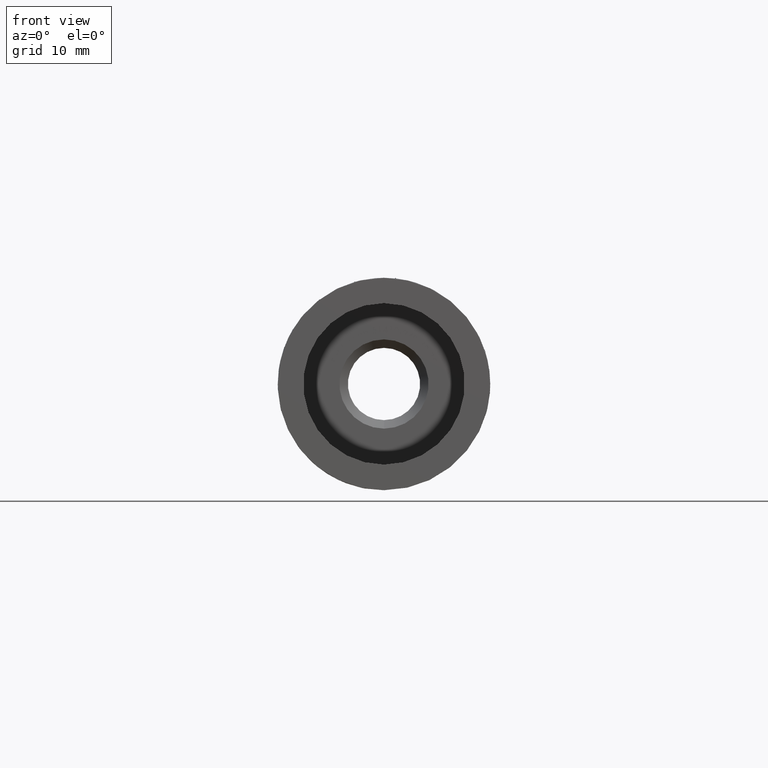
[diagram: clean part render]
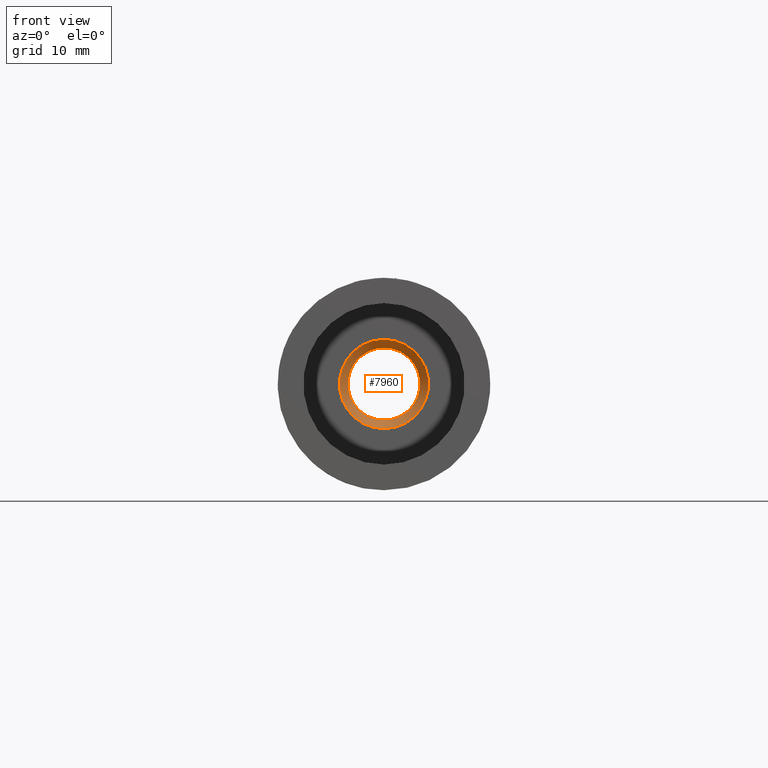
[diagram: same view with one face highlighted and labeled with its STEP entity id]
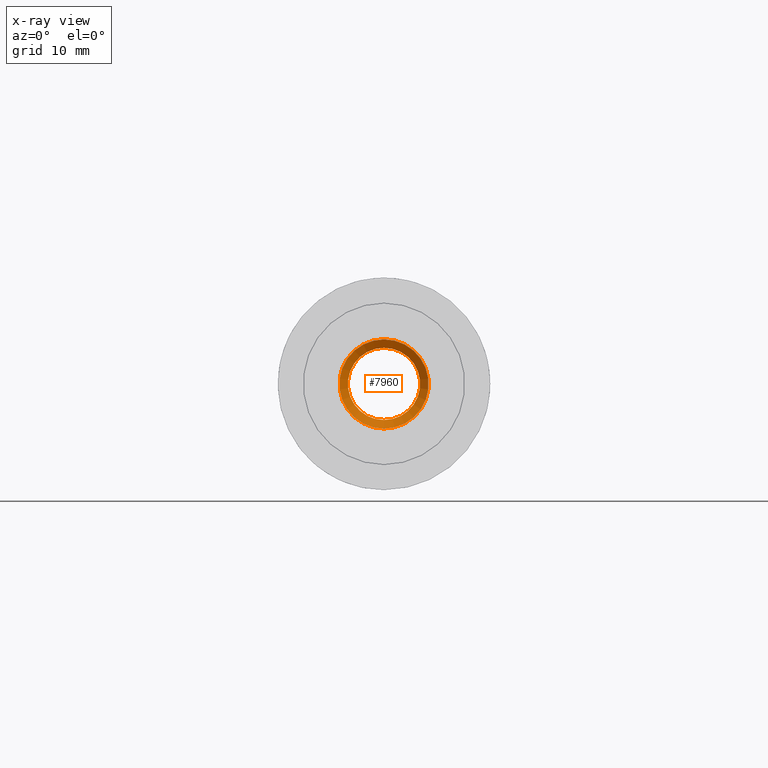
[diagram: x-ray of the same camera — body ghosted, the highlighted face saturated]
A machine part, front view. The second image highlights one B-rep face of the part: STEP entity #7960.
The next image is the same camera in x-ray: the body ghosted, the highlighted face saturated — about 0% of this face is hidden behind the body in this view.
In plain terms, the highlighted conical surface has half-angle 45 deg.
Its self-contained STEP definition (entity closure, byte-faithful):
#168 = VERTEX_POINT ( 'NONE', #2368 ) ;
#542 = CARTESIAN_POINT ( 'NONE',  ( 0.000000000000000000, 56.00000000000002132, 0.000000000000000000 ) ) ;
#967 = DIRECTION ( 'NONE',  ( 0.000000000000000000, -1.000000000000000000, 0.000000000000000000 ) ) ;
#2368 = CARTESIAN_POINT ( 'NONE',  ( 0.000000000000000000, 56.00000000000002132, -4.249999999999988454 ) ) ;
#3981 = AXIS2_PLACEMENT_3D ( 'NONE', #5275, #10824, #5127 ) ;
#4662 = VERTEX_POINT ( 'NONE', #14842 ) ;
#4855 = AXIS2_PLACEMENT_3D ( 'NONE', #542, #6376, #14270 ) ;
#5127 = DIRECTION ( 'NONE',  ( 0.000000000000000000, 0.000000000000000000, -1.000000000000000000 ) ) ;
#5275 = CARTESIAN_POINT ( 'NONE',  ( 0.000000000000000000, 55.00000000000000711, 0.000000000000000000 ) ) ;
#5538 = CIRCLE ( 'NONE', #3981, 5.250000000000011546 ) ;
#6138 = FACE_OUTER_BOUND ( 'NONE', #13870, .T. ) ;
#6222 = ORIENTED_EDGE ( 'NONE', *, *, #12986, .F. ) ;
#6376 = DIRECTION ( 'NONE',  ( 0.000000000000000000, -1.000000000000000000, 0.000000000000000000 ) ) ;
#7704 = CARTESIAN_POINT ( 'NONE',  ( 0.000000000000000000, 56.00000000000002132, 0.000000000000000000 ) ) ;
#7960 = ADVANCED_FACE ( 'NONE', ( #6138, #10974 ), #8084, .F. ) ;
#8084 = CONICAL_SURFACE ( 'NONE', #11797, 4.249999999999988454, 0.7853981633974526089 ) ;
#10824 = DIRECTION ( 'NONE',  ( -0.000000000000000000, 1.000000000000000000, -0.000000000000000000 ) ) ;
#10974 = FACE_BOUND ( 'NONE', #14392, .T. ) ;
#11797 = AXIS2_PLACEMENT_3D ( 'NONE', #7704, #967, #14641 ) ;
#12008 = EDGE_CURVE ( 'NONE', #4662, #4662, #5538, .T. ) ;
#12986 = EDGE_CURVE ( 'NONE', #168, #168, #14143, .T. ) ;
#13870 = EDGE_LOOP ( 'NONE', ( #14163 ) ) ;
#14143 = CIRCLE ( 'NONE', #4855, 4.249999999999988454 ) ;
#14163 = ORIENTED_EDGE ( 'NONE', *, *, #12008, .F. ) ;
#14270 = DIRECTION ( 'NONE',  ( 0.000000000000000000, 0.000000000000000000, -1.000000000000000000 ) ) ;
#14392 = EDGE_LOOP ( 'NONE', ( #6222 ) ) ;
#14641 = DIRECTION ( 'NONE',  ( 0.000000000000000000, 0.000000000000000000, -1.000000000000000000 ) ) ;
#14842 = CARTESIAN_POINT ( 'NONE',  ( 0.000000000000000000, 55.00000000000000711, -5.250000000000011546 ) ) ;